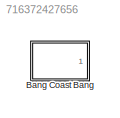
MODEL slx_716372427656
KIND library
CONFIG AbsTol = auto
CONFIG EnableMultiTasking = off
CONFIG FixedStep = auto
CONFIG MaxStep = auto
CONFIG MinStep = auto
CONFIG RelTol = 1e-3
CONFIG SampleTimeConstraint = Unconstrained
CONFIG Solver = VariableStepAuto
CONFIG SolverName = VariableStepAuto
CONFIG StartTime = 0.0
CONFIG StopTime = 10.0
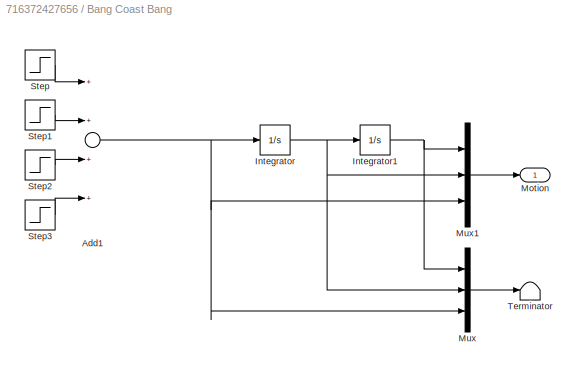
BLOCK [SubSystem] Bang Coast Bang
  AttributesFormatString = t = %<tStart>, A = %<amp>
  Ports = [0, 1]
  RequestExecContextInheritance = off
BLOCK [Sum] Bang Coast Bang/Add1
  InputSameDT = off
  Inputs = ++++
  OutDataTypeStr = Inherit: Inherit via internal rule
  Ports = [4, 1]
  SaturateOnIntegerOverflow = off
BLOCK [Integrator] Bang Coast Bang/Integrator
  InitialCondition = spdIC
  Ports = [1, 1]
BLOCK [Integrator] Bang Coast Bang/Integrator1
  InitialCondition = posIC
  Ports = [1, 1]
BLOCK [Outport] Bang Coast Bang/Motion
  IconDisplay = Port number
BLOCK [Mux] Bang Coast Bang/Mux
  DisplayOption = bar
  Inputs = 3
  Ports = [3, 1]
BLOCK [Mux] Bang Coast Bang/Mux1
  DisplayOption = bar
  Inputs = 3
  Ports = [3, 1]
BLOCK [Step] Bang Coast Bang/Step
  After = amp
  SampleTime = 0
  Time = tStart
BLOCK [Step] Bang Coast Bang/Step1
  After = -amp
  SampleTime = 0
  Time = tStart+tPW
BLOCK [Step] Bang Coast Bang/Step2
  After = -amp
  SampleTime = 0
  Time = tStart+tPW+tCoast
BLOCK [Step] Bang Coast Bang/Step3
  After = amp
  SampleTime = 0
  Time = tStart+2*tPW+tCoast
BLOCK [Terminator] Bang Coast Bang/Terminator
NET Bang Coast Bang/Add1:1 -> Bang Coast Bang/Integrator:1, Bang Coast Bang/Mux1:3, Bang Coast Bang/Mux:3
NET Bang Coast Bang/Integrator1:1 -> Bang Coast Bang/Mux1:1, Bang Coast Bang/Mux:1
NET Bang Coast Bang/Integrator:1 -> Bang Coast Bang/Integrator1:1, Bang Coast Bang/Mux1:2, Bang Coast Bang/Mux:2
LINE Bang Coast Bang/Mux1:1 -> Bang Coast Bang/Motion:1
LINE Bang Coast Bang/Mux:1 -> Bang Coast Bang/Terminator:1
LINE Bang Coast Bang/Step1:1 -> Bang Coast Bang/Add1:2
LINE Bang Coast Bang/Step2:1 -> Bang Coast Bang/Add1:3
LINE Bang Coast Bang/Step3:1 -> Bang Coast Bang/Add1:4
LINE Bang Coast Bang/Step:1 -> Bang Coast Bang/Add1:1
note: NET lines group one-source signal fan-out (src -> all destinations, sorted); 1:1 wires keep LINE
